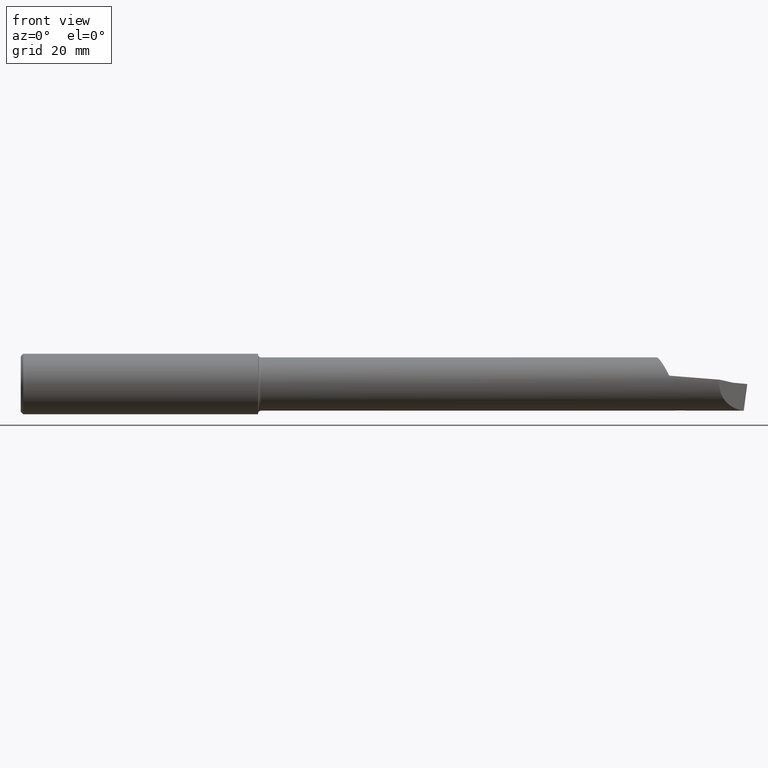
[diagram: clean part render]
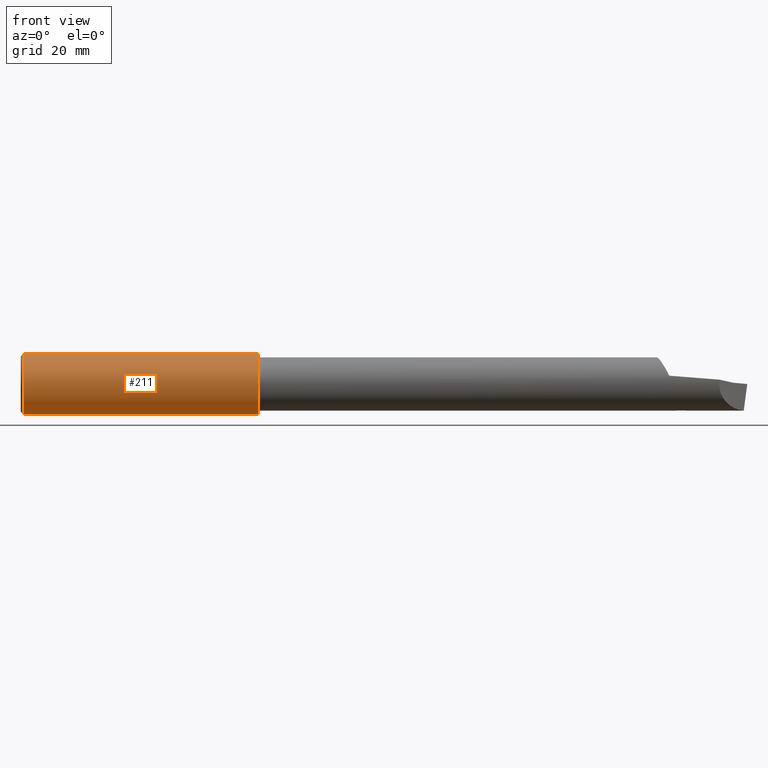
[diagram: same view with one face highlighted and labeled with its STEP entity id]
A machine part, front view. The second image highlights one B-rep face of the part: STEP entity #211.
In plain terms, the highlighted cylindrical surface (edge-blend (fillet) strip) has radius 6.3462 mm, axis along (-1, -0, -0).
Its self-contained STEP definition (entity closure, byte-faithful):
#17 = CARTESIAN_POINT ( 'NONE',  ( 0.000000000000000000, 0.000000000000000000, 0.2498499999999999888 ) ) ;
#32 = DIRECTION ( 'NONE',  ( 0.000000000000000000, 0.000000000000000000, -1.000000000000000000 ) ) ;
#35 = EDGE_CURVE ( 'NONE', #229, #364, #604, .T. ) ;
#54 = ORIENTED_EDGE ( 'NONE', *, *, #35, .T. ) ;
#70 = CARTESIAN_POINT ( 'NONE',  ( 1.959525038226270555, 3.059780027669661931E-17, -0.2498499999999999888 ) ) ;
#90 = EDGE_CURVE ( 'NONE', #106, #190, #595, .T. ) ;
#99 = CARTESIAN_POINT ( 'NONE',  ( 0.02000000000000000042, 3.059780027669661931E-17, -0.2498499999999999888 ) ) ;
#106 = VERTEX_POINT ( 'NONE', #70 ) ;
#107 = CIRCLE ( 'NONE', #208, 0.2498499999999999888 ) ;
#122 = FACE_OUTER_BOUND ( 'NONE', #273, .T. ) ;
#125 = AXIS2_PLACEMENT_3D ( 'NONE', #554, #336, #32 ) ;
#135 = DIRECTION ( 'NONE',  ( 0.000000000000000000, 0.000000000000000000, 1.000000000000000000 ) ) ;
#172 = VECTOR ( 'NONE', #489, 39.37007874015748143 ) ;
#188 = CIRCLE ( 'NONE', #125, 0.2498499999999999888 ) ;
#190 = VERTEX_POINT ( 'NONE', #99 ) ;
#208 = AXIS2_PLACEMENT_3D ( 'NONE', #491, #376, #657 ) ;
#211 = ADVANCED_FACE ( 'NONE', ( #122 ), #427, .T. ) ;
#229 = VERTEX_POINT ( 'NONE', #598 ) ;
#273 = EDGE_LOOP ( 'NONE', ( #732, #680, #54, #684 ) ) ;
#336 = DIRECTION ( 'NONE',  ( 1.000000000000000000, 0.000000000000000000, 0.000000000000000000 ) ) ;
#364 = VERTEX_POINT ( 'NONE', #417 ) ;
#376 = DIRECTION ( 'NONE',  ( -1.000000000000000000, -0.000000000000000000, -0.000000000000000000 ) ) ;
#379 = VECTOR ( 'NONE', #492, 39.37007874015748143 ) ;
#408 = AXIS2_PLACEMENT_3D ( 'NONE', #421, #651, #135 ) ;
#417 = CARTESIAN_POINT ( 'NONE',  ( 0.02000000000000000042, 0.000000000000000000, 0.2498499999999999888 ) ) ;
#421 = CARTESIAN_POINT ( 'NONE',  ( 0.000000000000000000, 0.000000000000000000, 0.000000000000000000 ) ) ;
#427 = CYLINDRICAL_SURFACE ( 'NONE', #408, 0.2498499999999999888 ) ;
#489 = DIRECTION ( 'NONE',  ( -1.000000000000000000, -0.000000000000000000, -0.000000000000000000 ) ) ;
#491 = CARTESIAN_POINT ( 'NONE',  ( 0.02000000000000000042, 0.000000000000000000, 0.000000000000000000 ) ) ;
#492 = DIRECTION ( 'NONE',  ( -1.000000000000000000, -0.000000000000000000, -0.000000000000000000 ) ) ;
#550 = CARTESIAN_POINT ( 'NONE',  ( 0.000000000000000000, 3.059780027669661931E-17, -0.2498499999999999888 ) ) ;
#554 = CARTESIAN_POINT ( 'NONE',  ( 1.959525038226270555, 0.000000000000000000, 0.000000000000000000 ) ) ;
#577 = EDGE_CURVE ( 'NONE', #190, #364, #107, .T. ) ;
#595 = LINE ( 'NONE', #550, #172 ) ;
#598 = CARTESIAN_POINT ( 'NONE',  ( 1.959525038226270555, 0.000000000000000000, 0.2498499999999999888 ) ) ;
#604 = LINE ( 'NONE', #17, #379 ) ;
#606 = EDGE_CURVE ( 'NONE', #229, #106, #188, .T. ) ;
#651 = DIRECTION ( 'NONE',  ( -1.000000000000000000, -0.000000000000000000, -0.000000000000000000 ) ) ;
#657 = DIRECTION ( 'NONE',  ( 0.000000000000000000, 0.000000000000000000, 1.000000000000000000 ) ) ;
#680 = ORIENTED_EDGE ( 'NONE', *, *, #606, .F. ) ;
#684 = ORIENTED_EDGE ( 'NONE', *, *, #577, .F. ) ;
#732 = ORIENTED_EDGE ( 'NONE', *, *, #90, .F. ) ;